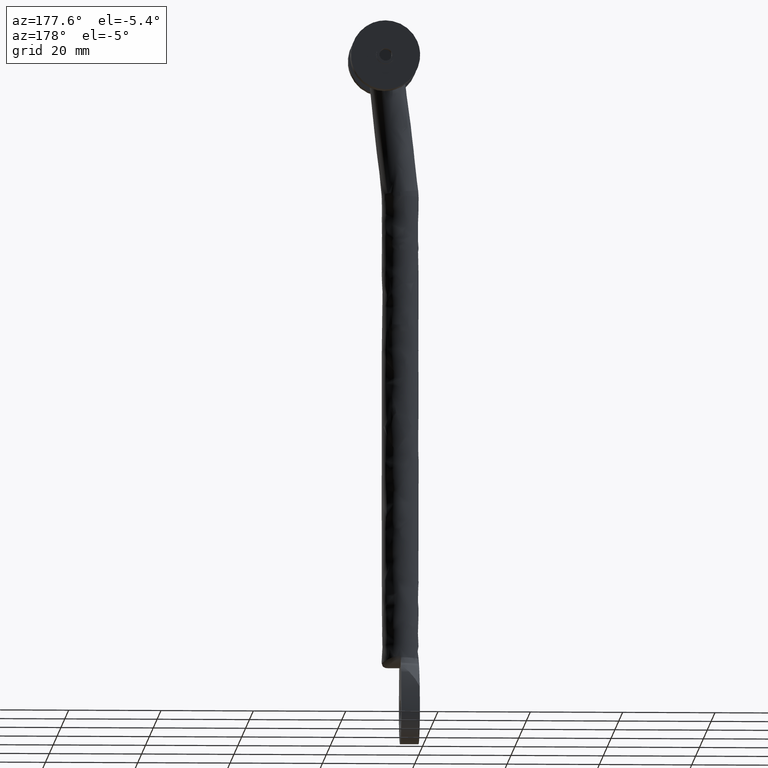
[diagram: clean part render]
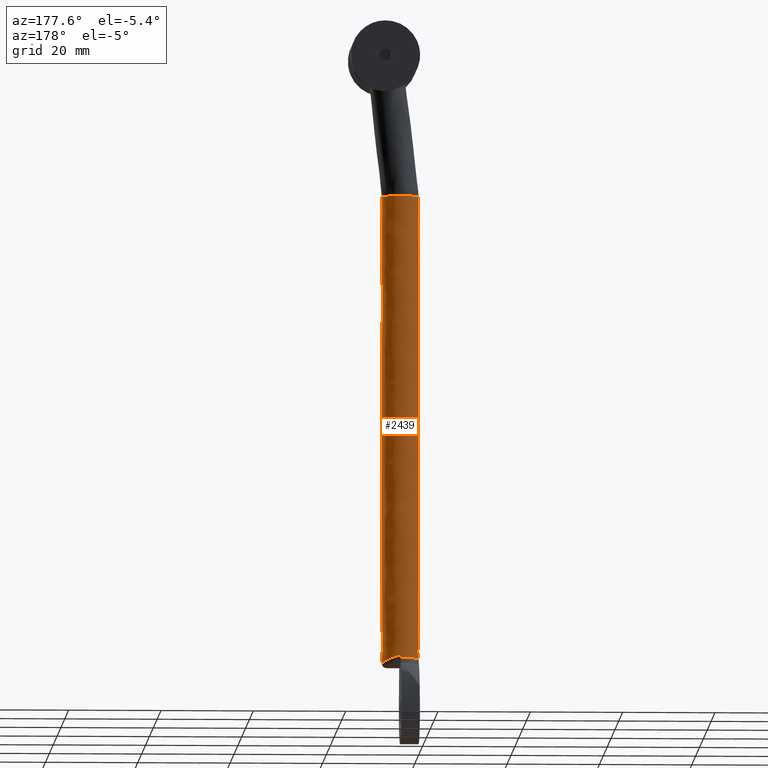
[diagram: same view with one face highlighted and labeled with its STEP entity id]
A machine part, auxiliary view. The second image highlights one B-rep face of the part: STEP entity #2439.
In plain terms, the highlighted face is a freeform B-spline surface patch.
Its self-contained STEP definition (entity closure, byte-faithful):
#2214=CARTESIAN_POINT('',(1.146998606576235,-2.803637351883365,114.875919255342790));
#2215=CARTESIAN_POINT('',(-1.656638745307131,0.049364421520025,114.875919255342820));
#2216=CARTESIAN_POINT('',(1.196363028096260,2.853001773403391,114.875919255342790));
#2217=CARTESIAN_POINT('',(4.049364801499652,5.656639125286756,114.875919255342820));
#2218=CARTESIAN_POINT('',(6.853002153383017,2.803637351883365,114.875919255342790));
#2219=CARTESIAN_POINT('',(9.656639505266382,-0.049364421520025,114.875919255342820));
#2220=CARTESIAN_POINT('',(6.803637731862991,-2.853001773403391,114.875919255342790));
#2221=CARTESIAN_POINT('',(1.146998606576235,-2.803637351883365,8.412473421635781));
#2222=CARTESIAN_POINT('',(-1.656638745307131,0.049364421520025,8.412473421635779));
#2223=CARTESIAN_POINT('',(1.196363028096260,2.853001773403391,8.412473421635779));
#2224=CARTESIAN_POINT('',(4.049364801499652,5.656639125286756,8.412473421635779));
#2225=CARTESIAN_POINT('',(6.853002153383017,2.803637351883365,8.412473421635781));
#2226=CARTESIAN_POINT('',(9.656639505266382,-0.049364421520025,8.412473421635783));
#2227=CARTESIAN_POINT('',(6.803637731862991,-2.853001773403391,8.412473421635783));
#2235=(BOUNDED_SURFACE()B_SPLINE_SURFACE(2,1,((#2214,#2221),(#2215,#2222),(#2216,#2223),(#2217,#2224),(#2218,#2225),(#2219,#2226),(#2220,#2227)),.UNSPECIFIED.,.F.,.F.,.U.)B_SPLINE_SURFACE_WITH_KNOTS((3,2,2,3),(2,2),(0.0,6.627417312754934,13.254834625509870,19.882251938264812),(0.0,106.463445833707100),.UNSPECIFIED.)GEOMETRIC_REPRESENTATION_ITEM()RATIONAL_B_SPLINE_SURFACE(((1.0,1.0),(0.707106781186548,0.707106781186548),(1.0,1.0),(0.707106781186548,0.707106781186548),(1.0,1.0),(0.707106781186548,0.707106781186548),(1.0,1.0)))REPRESENTATION_ITEM('')SURFACE());
#2236=CARTESIAN_POINT('',(1.146998252171889,-2.803636855707792,112.342583244945200));
#2237=VERTEX_POINT('',#2236);
#2238=CARTESIAN_POINT('',(0.000000379979735,0.0,112.342583244945200));
#2239=VERTEX_POINT('',#2238);
#2240=CARTESIAN_POINT('',(1.146998252171889,-2.803636855707793,112.342583244945190));
#2241=CARTESIAN_POINT('',(0.000000379979735,-1.636442634777618,112.342583244945190));
#2242=CARTESIAN_POINT('',(0.000000379979735,0.0,112.342583244945200));
#2250=(BOUNDED_CURVE()B_SPLINE_CURVE(2,(#2240,#2241,#2242),.UNSPECIFIED.,.F.,.U.)B_SPLINE_CURVE_WITH_KNOTS((3,3),(0.376316794489715,0.500000000000000),.UNSPECIFIED.)CURVE()GEOMETRIC_REPRESENTATION_ITEM()RATIONAL_B_SPLINE_CURVE((0.853569642162277,0.855096111299708,1.0))REPRESENTATION_ITEM(''));
#2251=EDGE_CURVE('',#2237,#2239,#2250,.T.);
#2252=ORIENTED_EDGE('',*,*,#2251,.T.);
#2253=CARTESIAN_POINT('',(0.015465943446779,0.351404786653792,112.342583244943000));
#2254=VERTEX_POINT('',#2253);
#2255=CARTESIAN_POINT('',(0.000000379979735,0.0,112.342583244945200));
#2256=CARTESIAN_POINT('',(0.000000379979735,0.176042718532735,112.342583244945190));
#2257=CARTESIAN_POINT('',(0.015465943446779,0.351404786653792,112.342583244943030));
#2265=(BOUNDED_CURVE()B_SPLINE_CURVE(2,(#2255,#2256,#2257),.UNSPECIFIED.,.F.,.U.)B_SPLINE_CURVE_WITH_KNOTS((3,3),(0.500000000000000,0.515281545182615),.UNSPECIFIED.)CURVE()GEOMETRIC_REPRESENTATION_ITEM()RATIONAL_B_SPLINE_CURVE((1.0,0.982096556172083,0.966381850630411))REPRESENTATION_ITEM(''));
#2266=EDGE_CURVE('',#2239,#2254,#2265,.T.);
#2267=ORIENTED_EDGE('',*,*,#2266,.T.);
#2268=CARTESIAN_POINT('',(4.122945310483961,3.998110121552845,112.342583245022600));
#2269=VERTEX_POINT('',#2268);
#2270=CARTESIAN_POINT('',(0.015465943446779,0.351404786653792,112.342583244943010));
#2271=CARTESIAN_POINT('',(0.337243517367145,4.000000000000000,112.342583244945200));
#2272=CARTESIAN_POINT('',(4.000000379979736,4.0,112.342583244945200));
#2273=CARTESIAN_POINT('',(4.061487371590114,4.0,112.342583244945250));
#2274=CARTESIAN_POINT('',(4.122945310483961,3.998110121552844,112.342583245022650));
#2282=(BOUNDED_CURVE()B_SPLINE_CURVE(2,(#2270,#2271,#2272,#2273,#2274),.UNSPECIFIED.,.F.,.U.)B_SPLINE_CURVE_WITH_KNOTS((3,2,3),(0.515281545182614,0.750000000000000,0.755400348564058),.UNSPECIFIED.)CURVE()GEOMETRIC_REPRESENTATION_ITEM()RATIONAL_B_SPLINE_CURVE((0.966381850630412,0.725010225014464,1.0,0.993673098105433,0.987619536015357))REPRESENTATION_ITEM(''));
#2283=EDGE_CURVE('',#2254,#2269,#2282,.T.);
#2284=ORIENTED_EDGE('',*,*,#2283,.T.);
#2285=CARTESIAN_POINT('',(8.000000379979735,0.0,112.342583244945200));
#2286=VERTEX_POINT('',#2285);
#2287=CARTESIAN_POINT('',(4.122945310483961,3.998110121552845,112.342583245022610));
#2288=CARTESIAN_POINT('',(8.000000379979735,3.878887724151494,112.342583244945220));
#2289=CARTESIAN_POINT('',(8.000000379979735,0.0,112.342583244945200));
#2297=(BOUNDED_CURVE()B_SPLINE_CURVE(2,(#2287,#2288,#2289),.UNSPECIFIED.,.F.,.U.)B_SPLINE_CURVE_WITH_KNOTS((3,3),(0.755400348564058,1.0),.UNSPECIFIED.)CURVE()GEOMETRIC_REPRESENTATION_ITEM()RATIONAL_B_SPLINE_CURVE((0.987619536015357,0.713433683081114,1.0))REPRESENTATION_ITEM(''));
#2298=EDGE_CURVE('',#2269,#2286,#2297,.T.);
#2299=ORIENTED_EDGE('',*,*,#2298,.T.);
#2300=CARTESIAN_POINT('',(6.803637241012471,-2.853002122574933,112.342583244947800));
#2301=VERTEX_POINT('',#2300);
#2302=CARTESIAN_POINT('',(8.000000379979735,0.0,112.342583244945200));
#2303=CARTESIAN_POINT('',(8.000000379979735,-1.677339773330693,112.342583244945220));
#2304=CARTESIAN_POINT('',(6.803637241012471,-2.853002122574933,112.342583244947750));
#2312=(BOUNDED_CURVE()B_SPLINE_CURVE(2,(#2302,#2303,#2304),.UNSPECIFIED.,.F.,.U.)B_SPLINE_CURVE_WITH_KNOTS((3,3),(0.0,0.126316793926452),.UNSPECIFIED.)CURVE()GEOMETRIC_REPRESENTATION_ITEM()RATIONAL_B_SPLINE_CURVE((1.0,0.852010670546744,0.853569642148374))REPRESENTATION_ITEM(''));
#2313=EDGE_CURVE('',#2286,#2301,#2312,.T.);
#2314=ORIENTED_EDGE('',*,*,#2313,.T.);
#2315=CARTESIAN_POINT('',(6.803639079812296,-2.853003144721060,11.626072792382599));
#2316=VERTEX_POINT('',#2315);
#2317=CARTESIAN_POINT('',(6.803637241012471,-2.853002122574933,112.342583244947800));
#2318=CARTESIAN_POINT('',(6.803639079812296,-2.853003144721060,11.626072792382599));
#2319=QUASI_UNIFORM_CURVE('',1,(#2317,#2318),.UNSPECIFIED.,.F.,.U.);
#2320=EDGE_CURVE('',#2301,#2316,#2319,.T.);
#2321=ORIENTED_EDGE('',*,*,#2320,.T.);
#2322=CARTESIAN_POINT('',(4.431455970744476,3.976662680338605,12.355542049959920));
#2323=VERTEX_POINT('',#2322);
#2324=CARTESIAN_POINT('',(6.803639079812296,-2.853003144721060,11.626072792382599));
#2325=CARTESIAN_POINT('',(6.816954440109450,-2.839914882728878,11.619865431353750));
#2326=CARTESIAN_POINT('',(6.830186912271376,-2.826726004287282,11.613670337601279));
#2327=CARTESIAN_POINT('',(6.886023605995918,-2.770295907621942,11.587424195486770));
#2328=CARTESIAN_POINT('',(6.927830733733098,-2.726082182446088,11.567500866238561));
#2329=CARTESIAN_POINT('',(7.009674704911316,-2.635445929325269,11.528034681216679));
#2330=CARTESIAN_POINT('',(7.049779528079268,-2.588940007980106,11.508458149301120));
#2331=CARTESIAN_POINT('',(7.166919375243919,-2.446572628751699,11.450679080962850));
#2332=CARTESIAN_POINT('',(7.240355842064486,-2.348427384379413,11.413646012667430));
#2333=CARTESIAN_POINT('',(7.446947595781743,-2.044175484204859,11.307866708155171));
#2334=CARTESIAN_POINT('',(7.566536090898408,-1.828352906522295,11.244406830671140));
#2335=CARTESIAN_POINT('',(7.691952347509826,-1.540591187264929,11.176878016412211));
#2336=CARTESIAN_POINT('',(7.715876483985281,-1.481976698828512,11.163933762751871));
#2337=CARTESIAN_POINT('',(7.760876354484751,-1.363745730205761,11.139497625117709));
#2338=CARTESIAN_POINT('',(7.781953073907059,-1.304154254540080,11.128005623952790));
#2339=CARTESIAN_POINT('',(7.840926140716148,-1.123947700377142,11.095759702424710));
#2340=CARTESIAN_POINT('',(7.874575648882232,-1.001903595800539,11.077232920846519));
#2341=CARTESIAN_POINT('',(7.916417837298646,-0.815906887713933,11.054150548403090));
#2342=CARTESIAN_POINT('',(7.928924023834844,-0.753418801270531,11.047241735784420));
#2343=CARTESIAN_POINT('',(7.950999868727865,-0.627442699834278,11.035046513146460));
#2344=CARTESIAN_POINT('',(7.960584724270832,-0.563829869027248,11.029751720158879));
#2345=CARTESIAN_POINT('',(7.984713702722021,-0.372308612806545,11.016448566688711));
#2346=CARTESIAN_POINT('',(8.004380778252346,-0.117077296639292,11.005693558115739));
#2347=CARTESIAN_POINT('',(7.999661248333928,0.137899046839645,11.008693219969400));
#2348=CARTESIAN_POINT('',(7.986955098261090,0.329035519854881,11.016102999176869));
#2349=CARTESIAN_POINT('',(7.981189371326094,0.392731689775319,11.019433760220910));
#2350=CARTESIAN_POINT('',(7.966561732177973,0.520091735564259,11.027827344320560));
#2351=CARTESIAN_POINT('',(7.957667362450201,0.583937620399118,11.032908613405990));
#2352=CARTESIAN_POINT('',(7.905767255617861,0.900457897283968,11.062428538117430));
#2353=CARTESIAN_POINT('',(7.840935209779132,1.144754965393700,11.099003204462020));
#2354=CARTESIAN_POINT('',(7.732419067005682,1.439792404062245,11.158896904922290));
#2355=CARTESIAN_POINT('',(7.709329013368993,1.498278769914836,11.171588237987800));
#2356=CARTESIAN_POINT('',(7.660365930057172,1.614212667552483,11.198358335276939));
#2357=CARTESIAN_POINT('',(7.634447150723971,1.671740927887952,11.212461535343030));
#2358=CARTESIAN_POINT('',(7.553274549575696,1.841176239372957,11.256368165147819));
#2359=CARTESIAN_POINT('',(7.494420980864766,1.950445696414359,11.287873130403490));
#2360=CARTESIAN_POINT('',(7.367607590883712,2.162044382716487,11.354727221894461));
#2361=CARTESIAN_POINT('',(7.299646916947472,2.264372408235351,11.390078409661900));
#2362=CARTESIAN_POINT('',(7.190925798979410,2.412831966796503,11.445552954082620));
#2363=CARTESIAN_POINT('',(7.153553136330421,2.461478282567528,11.464452545057240));
#2364=CARTESIAN_POINT('',(7.076523870485036,2.557102600856433,11.502993568786190));
#2365=CARTESIAN_POINT('',(7.036840214805919,2.604100542609470,11.522647155701550));
#2366=CARTESIAN_POINT('',(6.834417670207138,2.832990305594986,11.621705086581031));
#2367=CARTESIAN_POINT('',(6.658537052250767,2.998426368226998,11.704179114986040));
#2368=CARTESIAN_POINT('',(6.373357639960833,3.222075626616049,11.827815890803381));
#2369=CARTESIAN_POINT('',(6.274706402253155,3.292508851865994,11.869007924956790));
#2370=CARTESIAN_POINT('',(6.120958968335106,3.391940705350370,11.929990329672041));
#2371=CARTESIAN_POINT('',(6.068714675936315,3.424055623212027,11.950190393722069));
#2372=CARTESIAN_POINT('',(5.963162722995087,3.485646192006664,11.989815688834771));
#2373=CARTESIAN_POINT('',(5.909744339324477,3.515196507238580,12.009285870736150));
#2374=CARTESIAN_POINT('',(5.639356545811585,3.656793035851572,12.104550811611610));
#2375=CARTESIAN_POINT('',(5.412652566041703,3.750611012366606,12.174253821422150));
#2376=CARTESIAN_POINT('',(5.113500095784731,3.842399897610530,12.245775682418641));
#2377=CARTESIAN_POINT('',(5.052729844020231,3.859503269806014,12.259317001967300));
#2378=CARTESIAN_POINT('',(4.930140571462503,3.890866738384863,12.284448450009551));
#2379=CARTESIAN_POINT('',(4.868545023872703,3.905077011853772,12.295997073906870));
#2380=CARTESIAN_POINT('',(4.682834268513858,3.943313015402345,12.327369503423739));
#2381=CARTESIAN_POINT('',(4.557795874932186,3.962955392258860,12.343914628274741));
#2382=CARTESIAN_POINT('',(4.431455970744476,3.976662680338605,12.355542049959920));
#2383=B_SPLINE_CURVE_WITH_KNOTS('',3,(#2324,#2325,#2326,#2327,#2328,#2329,#2330,#2331,#2332,#2333,#2334,#2335,#2336,#2337,#2338,#2339,#2340,#2341,#2342,#2343,#2344,#2345,#2346,#2347,#2348,#2349,#2350,#2351,#2352,#2353,#2354,#2355,#2356,#2357,#2358,#2359,#2360,#2361,#2362,#2363,#2364,#2365,#2366,#2367,#2368,#2369,#2370,#2371,#2372,#2373,#2374,#2375,#2376,#2377,#2378,#2379,#2380,#2381,#2382),.UNSPECIFIED.,.F.,.U.,(4,2,2,2,2,2,2,2,2,2,2,1,2,2,2,2,2,2,2,2,2,2,2,2,2,2,2,2,2,4),(0.245186565253012,0.250000000000000,0.265625000000000,0.281250000000000,0.312499999999999,0.374999999999999,0.390624999999999,0.406249999999999,0.437499999999999,0.453124999999999,0.468749999999999,0.499999999999999,0.531249999999999,0.546874999999999,0.562499999999999,0.624999999999999,0.640624999999999,0.656249999999999,0.687499999999999,0.718749999999999,0.734374999999999,0.749999999999999,0.812499999999999,0.843749999999999,0.859374999999999,0.874999999999999,0.937499999999999,0.953125000000000,0.968750000000000,1.0),.UNSPECIFIED.);
#2384=EDGE_CURVE('',#2316,#2323,#2383,.T.);
#2385=ORIENTED_EDGE('',*,*,#2384,.T.);
#2386=CARTESIAN_POINT('',(4.000000153531341,3.999900793473715,12.355542049959920));
#2387=VERTEX_POINT('',#2386);
#2388=CARTESIAN_POINT('',(4.431455970744476,3.976662680338605,12.355542049959920));
#2389=CARTESIAN_POINT('',(4.288197736532284,3.992172717861142,12.355542049959920));
#2390=CARTESIAN_POINT('',(4.144099108565870,3.999933837507012,12.355542049959920));
#2391=CARTESIAN_POINT('',(4.000000153531341,3.999900793473715,12.355542049959920));
#2392=QUASI_UNIFORM_CURVE('',3,(#2388,#2389,#2390,#2391),.UNSPECIFIED.,.F.,.U.);
#2393=EDGE_CURVE('',#2323,#2387,#2392,.T.);
#2394=ORIENTED_EDGE('',*,*,#2393,.T.);
#2395=CARTESIAN_POINT('',(4.000000185240075,4.000000189989800,11.998061863390300));
#2396=VERTEX_POINT('',#2395);
#2397=CARTESIAN_POINT('',(4.000000153531341,3.999900793473715,12.355542049959920));
#2398=CARTESIAN_POINT('',(4.000000185240075,4.000000189989800,11.998061863390300));
#2399=QUASI_UNIFORM_CURVE('',1,(#2397,#2398),.UNSPECIFIED.,.F.,.U.);
#2400=EDGE_CURVE('',#2387,#2396,#2399,.T.);
#2401=ORIENTED_EDGE('',*,*,#2400,.T.);
#2402=CARTESIAN_POINT('',(0.000000189989819,0.0,11.998061863390300));
#2403=VERTEX_POINT('',#2402);
#2404=CARTESIAN_POINT('',(0.000000189989820,0.0,11.998061863390300));
#2405=CARTESIAN_POINT('',(0.000000189989820,3.999999995250259,11.998061863390300));
#2406=CARTESIAN_POINT('',(4.000000185240075,4.000000189989800,11.998061863390300));
#2414=(BOUNDED_CURVE()B_SPLINE_CURVE(2,(#2404,#2405,#2406),.UNSPECIFIED.,.F.,.U.)CURVE()GEOMETRIC_REPRESENTATION_ITEM()QUASI_UNIFORM_CURVE()RATIONAL_B_SPLINE_CURVE((1.0,0.707106798399254,1.0))REPRESENTATION_ITEM(''));
#2415=EDGE_CURVE('',#2403,#2396,#2414,.T.);
#2416=ORIENTED_EDGE('',*,*,#2415,.F.);
#2417=CARTESIAN_POINT('',(1.146998189190115,-2.803636927148087,11.998061863390300));
#2418=VERTEX_POINT('',#2417);
#2419=CARTESIAN_POINT('',(1.146998189190115,-2.803636927148088,11.998061863390307));
#2420=CARTESIAN_POINT('',(0.000000189989820,-1.636442720454711,11.998061863390300));
#2421=CARTESIAN_POINT('',(0.000000189989820,0.0,11.998061863390300));
#2429=(BOUNDED_CURVE()B_SPLINE_CURVE(2,(#2419,#2420,#2421),.UNSPECIFIED.,.F.,.U.)B_SPLINE_CURVE_WITH_KNOTS((3,3),(0.505267161392690,1.0),.UNSPECIFIED.)CURVE()GEOMETRIC_REPRESENTATION_ITEM()RATIONAL_B_SPLINE_CURVE((0.853569650665447,0.855096114963279,1.0))REPRESENTATION_ITEM(''));
#2430=EDGE_CURVE('',#2418,#2403,#2429,.T.);
#2431=ORIENTED_EDGE('',*,*,#2430,.F.);
#2432=CARTESIAN_POINT('',(1.146998252171889,-2.803636855707792,112.342583244945200));
#2433=CARTESIAN_POINT('',(1.146998189190115,-2.803636927148087,11.998061863390300));
#2434=QUASI_UNIFORM_CURVE('',1,(#2432,#2433),.UNSPECIFIED.,.F.,.U.);
#2435=EDGE_CURVE('',#2237,#2418,#2434,.T.);
#2436=ORIENTED_EDGE('',*,*,#2435,.F.);
#2437=EDGE_LOOP('',(#2252,#2267,#2284,#2299,#2314,#2321,#2385,#2394,#2401,#2416,#2431,#2436));
#2438=FACE_OUTER_BOUND('',#2437,.T.);
#2439=ADVANCED_FACE('',(#2438),#2235,.T.);